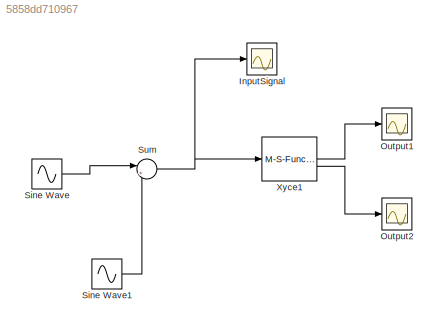
MODEL slx_5858dd710967
KIND model
CONFIG AbsTol = auto
CONFIG EnableMultiTasking = off
CONFIG FixedStep = auto
CONFIG MaxStep = auto
CONFIG MinStep = auto
CONFIG RelTol = 1e-3
CONFIG SampleTimeConstraint = Unconstrained
CONFIG SolverName = VariableStepAuto
CONFIG StartTime = 0.0
CONFIG StopTime = 5e-3
BLOCK [Scope] InputSignal
  Floating = off
  NumInputPorts = 1
  ScopeSpecificationString = Simulink.scopes.TimeScopeBlockCfg('CurrentConfiguration', extmgr.ConfigurationSet(extmgr.Configuration('Core','General UI',true),extmgr.Configuration('Core','Source UI',true),extmgr.Configuration('Sources','WiredSimulink',true,'DataLoggingVariableName','ScopeData2'),extmgr.Configuration('Visuals','Time Domain',true,'SerializedDisplays',{struct('MinYLimReal','-9.395','MaxYLimReal','9.54733','YLabel...<+1414ch>
BLOCK [Scope] Output1
  Floating = off
  NumInputPorts = 1
  ScopeSpecificationString = Simulink.scopes.TimeScopeBlockCfg('CurrentConfiguration', extmgr.ConfigurationSet(extmgr.Configuration('Core','General UI',true),extmgr.Configuration('Core','Source UI',true),extmgr.Configuration('Sources','WiredSimulink',true),extmgr.Configuration('Visuals','Time Domain',true,'SerializedDisplays',{struct('MinYLimReal','-4.43176','MaxYLimReal','5.47084','YLabelReal','','MinYLimMag','0.00000','MaxY...<+1383ch>
BLOCK [Scope] Output2
  Floating = off
  NameLocation = top
  NumInputPorts = 1
  ScopeSpecificationString = Simulink.scopes.TimeScopeBlockCfg('CurrentConfiguration', extmgr.ConfigurationSet(extmgr.Configuration('Core','General UI',true),extmgr.Configuration('Core','Source UI',true),extmgr.Configuration('Sources','WiredSimulink',true,'DataLoggingVariableName','ScopeData1'),extmgr.Configuration('Visuals','Time Domain',true,'SerializedDisplays',{struct('MinYLimReal','-0.88741','MaxYLimReal','0.96676','YLab...<+1422ch>
BLOCK [Sin] Sine Wave
  Amplitude = 5
  Frequency = 5e3
  SampleTime = 0
BLOCK [Sin] Sine Wave1
  Amplitude = 3
  Frequency = 2e4
  SampleTime = 0
BLOCK [Sum] Sum
  Inputs = |++
BLOCK [M-S-Function] Xyce1
  FunctionName = XyceSFunctionImp
  Parameters = XyceInputFileName,WorkingDirectory,NumberOfInputs,NumberOfOutputs,InputNames,OutputNames
LINE Sine Wave1:1 -> Sum:2
LINE Sine Wave:1 -> Sum:1
NET Sum:1 -> InputSignal:1, Xyce1:1
LINE Xyce1:1 -> Output1:1
LINE Xyce1:2 -> Output2:1
note: NET lines group one-source signal fan-out (src -> all destinations, sorted); 1:1 wires keep LINE
